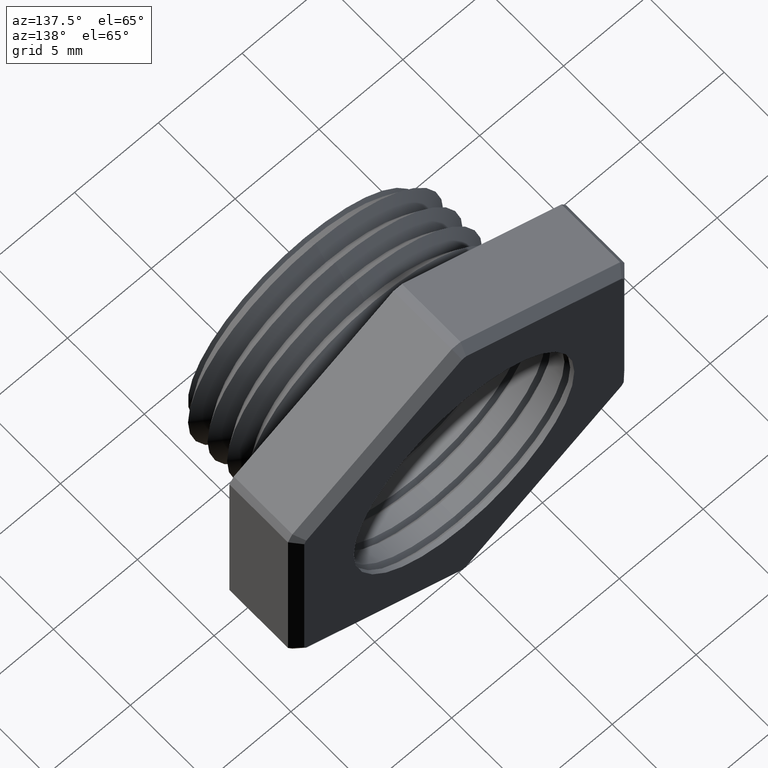
[diagram: clean part render]
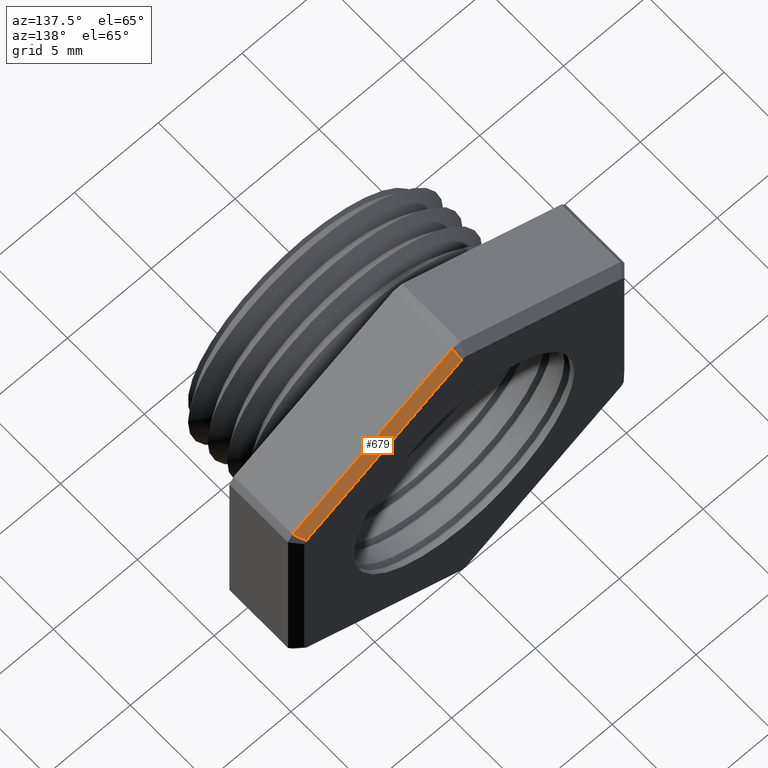
[diagram: same view with one face highlighted and labeled with its STEP entity id]
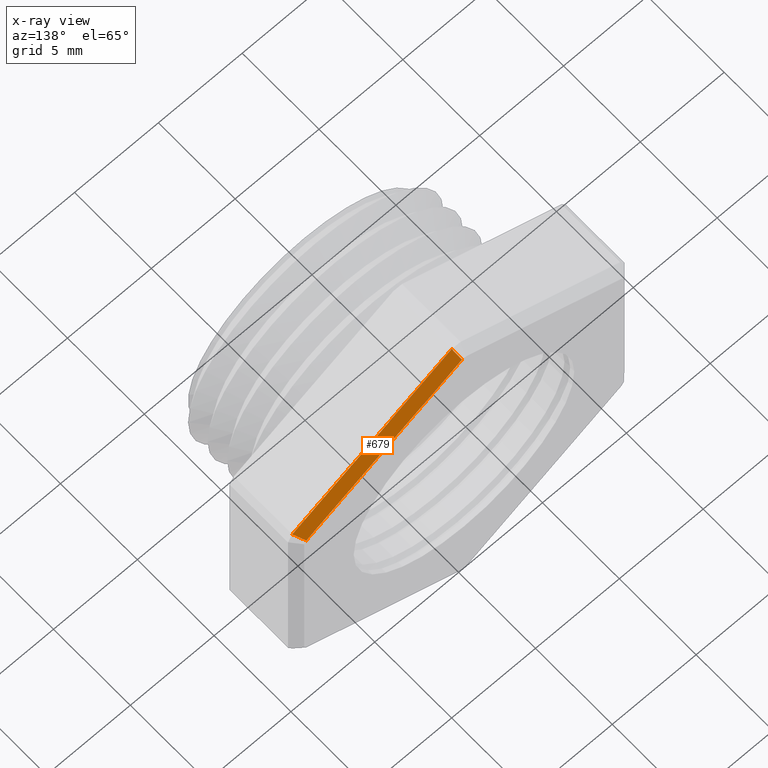
[diagram: x-ray of the same camera — body ghosted, the highlighted face saturated]
A machine part, auxiliary view. The second image highlights one B-rep face of the part: STEP entity #679.
The next image is the same camera in x-ray: the body ghosted, the highlighted face saturated — about 0% of this face is hidden behind the body in this view.
In plain terms, the highlighted planar face has unit normal (-0.3536, -0.7071, -0.6124).
Its self-contained STEP definition (entity closure, byte-faithful):
#447 = VERTEX_POINT ( 'NONE', #1689 ) ;
#488 = VERTEX_POINT ( 'NONE', #1784 ) ;
#526 = VERTEX_POINT ( 'NONE', #1846 ) ;
#528 = EDGE_CURVE ( 'NONE', #526, #529, #1845, .T. ) ;
#529 = VERTEX_POINT ( 'NONE', #1841 ) ;
#635 = EDGE_CURVE ( 'NONE', #447, #488, #1992, .T. ) ;
#679 = ADVANCED_FACE ( 'NONE', ( #2051 ), #2050, .F. ) ;
#680 = EDGE_LOOP ( 'NONE', ( #681, #682, #683, #685 ) ) ;
#681 = ORIENTED_EDGE ( 'NONE', *, *, #696, .T. ) ;
#682 = ORIENTED_EDGE ( 'NONE', *, *, #528, .F. ) ;
#683 = ORIENTED_EDGE ( 'NONE', *, *, #684, .F. ) ;
#684 = EDGE_CURVE ( 'NONE', #488, #526, #2099, .T. ) ;
#685 = ORIENTED_EDGE ( 'NONE', *, *, #635, .F. ) ;
#696 = EDGE_CURVE ( 'NONE', #447, #529, #2124, .T. ) ;
#1689 = CARTESIAN_POINT ( 'NONE',  ( 0.3847399997329628000, 0.3875548905829478400, 0.2339769702459619500 ) ) ;
#1784 = CARTESIAN_POINT ( 'NONE',  ( 0.01026000026703756900, 0.3875548905829478400, 0.4501830987437449000 ) ) ;
#1841 = CARTESIAN_POINT ( 'NONE',  ( 0.3702561695265030900, 0.4075548905829479200, 0.2192452027469730900 ) ) ;
#1842 = DIRECTION ( 'NONE',  ( 0.8660254037844386000, 0.0000000000000000000, -0.5000000000000002200 ) ) ;
#1843 = VECTOR ( 'NONE', #1842, 39.37007874015747400 ) ;
#1844 = CARTESIAN_POINT ( 'NONE',  ( 0.5252249999999999400, 0.4075548905829479200, 0.1297739067570981600 ) ) ;
#1845 = LINE ( 'NONE', #1844, #1843 ) ;
#1846 = CARTESIAN_POINT ( 'NONE',  ( 0.004743830473496905800, 0.4075548905829479200, 0.4302738500913559900 ) ) ;
#1989 = DIRECTION ( 'NONE',  ( -0.8660254037844384900, 0.0000000000000000000, 0.5000000000000001100 ) ) ;
#1990 = VECTOR ( 'NONE', #1989, 39.37007874015748900 ) ;
#1991 = CARTESIAN_POINT ( 'NONE',  ( 0.3949999999999999100, 0.3875548905829478400, 0.2280533563299023100 ) ) ;
#1992 = LINE ( 'NONE', #1991, #1990 ) ;
#2049 = CARTESIAN_POINT ( 'NONE',  ( 0.5252249999999999400, 0.4075548905829479200, 0.1297739067570980700 ) ) ;
#2050 = PLANE ( 'NONE',  #2102 ) ;
#2051 = FACE_OUTER_BOUND ( 'NONE', #680, .T. ) ;
#2094 = CARTESIAN_POINT ( 'NONE',  ( 0.004743830473496905800, 0.4075548905829479200, 0.4302738500913559900 ) ) ;
#2095 = CARTESIAN_POINT ( 'NONE',  ( 0.006563490973180616800, 0.4008908900639704400, 0.4369181935990527100 ) ) ;
#2096 = CARTESIAN_POINT ( 'NONE',  ( 0.008402664476396497600, 0.3942241312356292200, 0.4435544562902149500 ) ) ;
#2097 = CARTESIAN_POINT ( 'NONE',  ( 0.01026000026703756900, 0.3875548905829478400, 0.4501830987437449000 ) ) ;
#2099 = B_SPLINE_CURVE_WITH_KNOTS ( 'NONE', 3,
 ( #2097, #2096, #2095, #2094 ),
 .UNSPECIFIED., .F., .F.,
 ( 4, 4 ),
 ( 0.0000000000000000000, 0.0007303576929596150900 ),
 .UNSPECIFIED. ) ;
#2100 = DIRECTION ( 'NONE',  ( 0.0000000000000000000, 0.6546536707079769800, -0.7559289460184546200 ) ) ;
#2101 = DIRECTION ( 'NONE',  ( -0.3535533905932738400, -0.7071067811865476800, -0.6123724356957943600 ) ) ;
#2102 = AXIS2_PLACEMENT_3D ( 'NONE', #2049, #2101, #2100 ) ;
#2120 = CARTESIAN_POINT ( 'NONE',  ( 0.3702561695265030900, 0.4075548905829479200, 0.2192452027469730900 ) ) ;
#2121 = CARTESIAN_POINT ( 'NONE',  ( 0.3751005095457968200, 0.4008908900639704400, 0.2241432467198106700 ) ) ;
#2122 = CARTESIAN_POINT ( 'NONE',  ( 0.3799280948709224400, 0.3942241312356292200, 0.2290541490411437400 ) ) ;
#2123 = CARTESIAN_POINT ( 'NONE',  ( 0.3847399997329628000, 0.3875548905829478400, 0.2339769702459619500 ) ) ;
#2124 = B_SPLINE_CURVE_WITH_KNOTS ( 'NONE', 3,
 ( #2123, #2122, #2121, #2120 ),
 .UNSPECIFIED., .F., .F.,
 ( 4, 4 ),
 ( 0.0000000000000000000, 0.0007303576929596148700 ),
 .UNSPECIFIED. ) ;